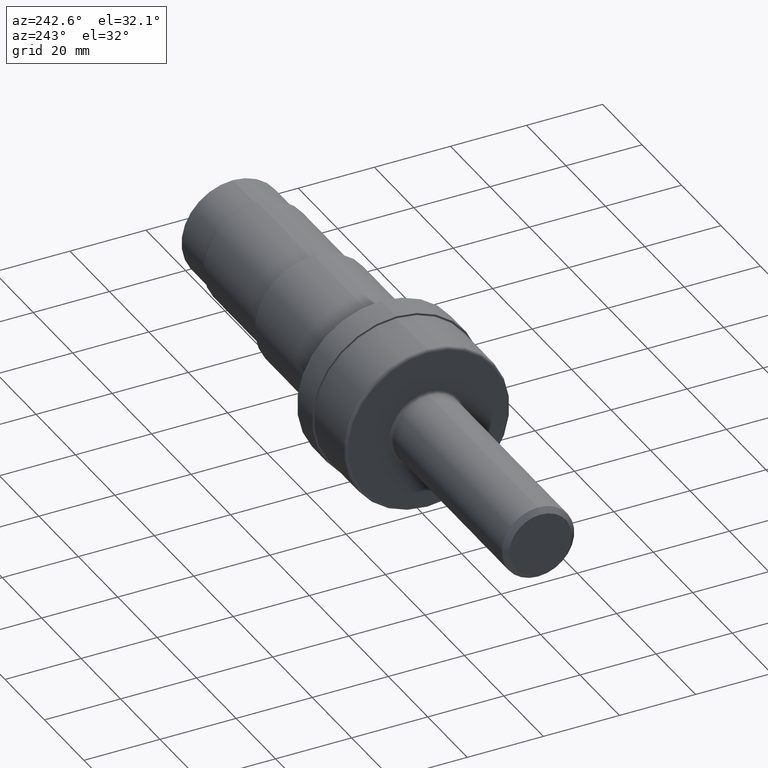
[diagram: clean part render]
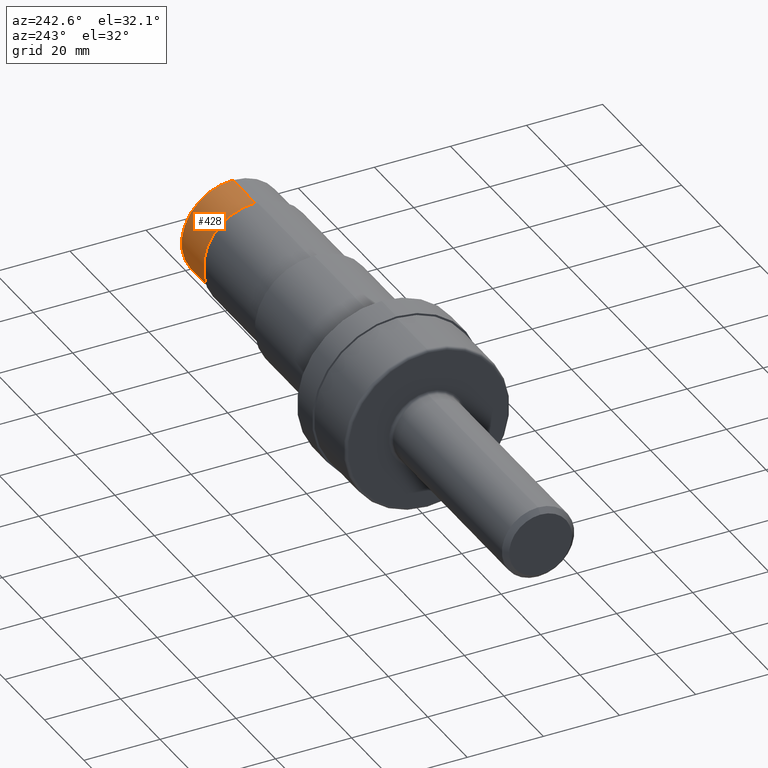
[diagram: same view with one face highlighted and labeled with its STEP entity id]
A machine part, auxiliary view. The second image highlights one B-rep face of the part: STEP entity #428.
In plain terms, the highlighted cylindrical surface (partial cylindrical patch) has radius 13.5103 mm, axis along (-1, -0, -0).
Its self-contained STEP definition (entity closure, byte-faithful):
#15 = LINE ( 'NONE', #649, #782 ) ;
#84 = AXIS2_PLACEMENT_3D ( 'NONE', #235, #263, #272 ) ;
#131 = EDGE_CURVE ( 'NONE', #136, #499, #416, .T. ) ;
#136 = VERTEX_POINT ( 'NONE', #937 ) ;
#190 = LINE ( 'NONE', #754, #919 ) ;
#192 = DIRECTION ( 'NONE',  ( -1.000000000000000000, -0.0000000000000000000, -0.0000000000000000000 ) ) ;
#207 = AXIS2_PLACEMENT_3D ( 'NONE', #801, #192, #653 ) ;
#228 = AXIS2_PLACEMENT_3D ( 'NONE', #891, #889, #886 ) ;
#235 = CARTESIAN_POINT ( 'NONE',  ( 0.0000000000000000000, 0.0000000000000000000, 0.0000000000000000000 ) ) ;
#263 = DIRECTION ( 'NONE',  ( -1.000000000000000000, -0.0000000000000000000, -0.0000000000000000000 ) ) ;
#272 = DIRECTION ( 'NONE',  ( 0.0000000000000000000, 0.0000000000000000000, 1.000000000000000000 ) ) ;
#352 = ORIENTED_EDGE ( 'NONE', *, *, #131, .T. ) ;
#364 = CIRCLE ( 'NONE', #228, 0.5319000000000000394 ) ;
#367 = EDGE_LOOP ( 'NONE', ( #352, #893, #405, #725 ) ) ;
#378 = EDGE_CURVE ( 'NONE', #136, #595, #15, .T. ) ;
#379 = VERTEX_POINT ( 'NONE', #912 ) ;
#405 = ORIENTED_EDGE ( 'NONE', *, *, #831, .F. ) ;
#416 = CIRCLE ( 'NONE', #207, 0.5319000000000000394 ) ;
#428 = ADVANCED_FACE ( 'NONE', ( #871 ), #465, .T. ) ;
#435 = CARTESIAN_POINT ( 'NONE',  ( 6.140000000000000568, 6.513896324664773679E-17, -0.5319000000000001505 ) ) ;
#465 = CYLINDRICAL_SURFACE ( 'NONE', #84, 0.5319000000000000394 ) ;
#499 = VERTEX_POINT ( 'NONE', #435 ) ;
#595 = VERTEX_POINT ( 'NONE', #622 ) ;
#622 = CARTESIAN_POINT ( 'NONE',  ( 5.694979162646339965, 0.0000000000000000000, 0.5319000000000000394 ) ) ;
#649 = CARTESIAN_POINT ( 'NONE',  ( 0.0000000000000000000, 0.0000000000000000000, 0.5319000000000000394 ) ) ;
#653 = DIRECTION ( 'NONE',  ( 0.0000000000000000000, 0.0000000000000000000, 1.000000000000000000 ) ) ;
#712 = DIRECTION ( 'NONE',  ( -1.000000000000000000, -0.0000000000000000000, -0.0000000000000000000 ) ) ;
#725 = ORIENTED_EDGE ( 'NONE', *, *, #378, .F. ) ;
#754 = CARTESIAN_POINT ( 'NONE',  ( 0.0000000000000000000, 6.513896324664771214E-17, -0.5319000000000000394 ) ) ;
#782 = VECTOR ( 'NONE', #712, 39.37007874015748143 ) ;
#801 = CARTESIAN_POINT ( 'NONE',  ( 6.140000000000000568, 0.0000000000000000000, 0.0000000000000000000 ) ) ;
#831 = EDGE_CURVE ( 'NONE', #595, #379, #364, .T. ) ;
#871 = FACE_OUTER_BOUND ( 'NONE', #367, .T. ) ;
#883 = EDGE_CURVE ( 'NONE', #499, #379, #190, .T. ) ;
#886 = DIRECTION ( 'NONE',  ( 0.0000000000000000000, 0.0000000000000000000, 1.000000000000000000 ) ) ;
#889 = DIRECTION ( 'NONE',  ( -1.000000000000000000, -0.0000000000000000000, -0.0000000000000000000 ) ) ;
#891 = CARTESIAN_POINT ( 'NONE',  ( 5.694979162646339965, 0.0000000000000000000, 0.0000000000000000000 ) ) ;
#893 = ORIENTED_EDGE ( 'NONE', *, *, #883, .T. ) ;
#904 = DIRECTION ( 'NONE',  ( -1.000000000000000000, -0.0000000000000000000, -0.0000000000000000000 ) ) ;
#912 = CARTESIAN_POINT ( 'NONE',  ( 5.694979162646339965, 6.706778195530479841E-17, -0.5319000000000000394 ) ) ;
#919 = VECTOR ( 'NONE', #904, 39.37007874015748143 ) ;
#937 = CARTESIAN_POINT ( 'NONE',  ( 6.140000000000000568, 0.0000000000000000000, 0.5319000000000000394 ) ) ;